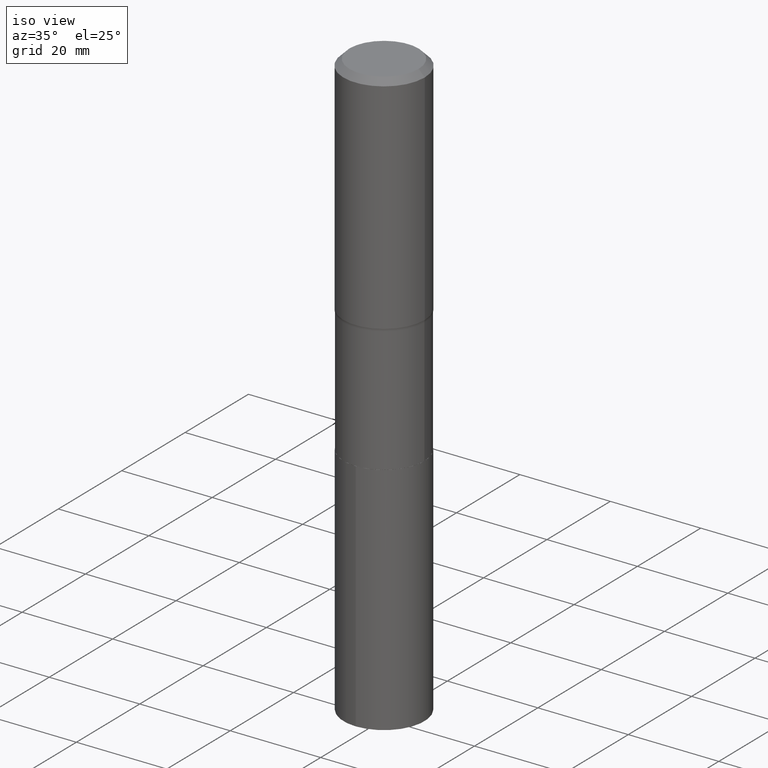
[diagram: clean part render]
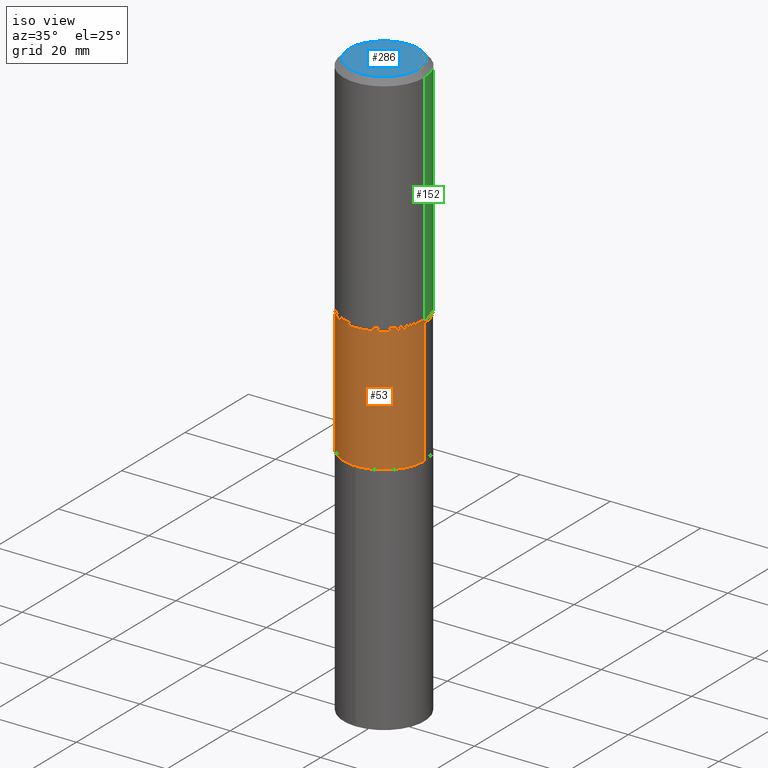
[diagram: same view with three faces highlighted in distinct colors, each labeled with its STEP entity id]
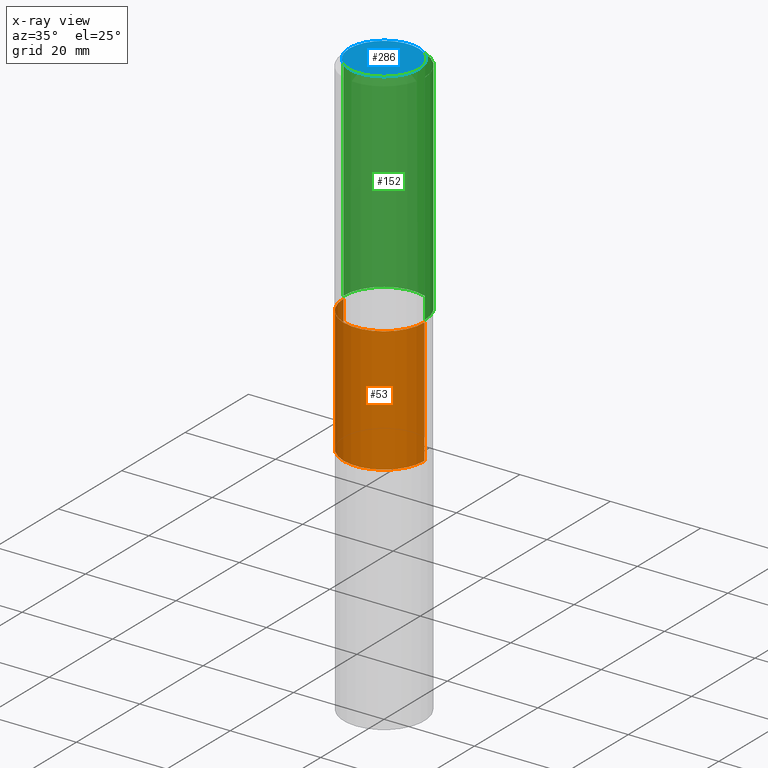
[diagram: x-ray of the same camera — body ghosted, the three highlighted faces saturated]
A machine part, iso view with three faces highlighted in distinct colors.
The next image is the same camera in x-ray (body ghosted, the three faces saturated) — at least one of them is partly hidden behind the body in this view.
Their STEP definitions:

[orange] entity #53 — the highlighted cylindrical surface (partial cylindrical patch) has radius 8.9294 mm, axis along (-0, 0, 1).
#16 = ORIENTED_EDGE ( 'NONE', *, *, #144, .F. ) ;
#19 = ORIENTED_EDGE ( 'NONE', *, *, #377, .T. ) ;
#41 = DIRECTION ( 'NONE',  ( 1.000000000000000000, -6.982962677686265922E-15, 4.876176775795935793E-29 ) ) ;
#44 = DIRECTION ( 'NONE',  ( -2.445468806185136597E-29, 3.491481338843145583E-15, 1.000000000000000000 ) ) ;
#50 = VECTOR ( 'NONE', #233, 39.37007874015748143 ) ;
#53 = ADVANCED_FACE ( 'NONE', ( #75 ), #408, .T. ) ;
#54 = DIRECTION ( 'NONE',  ( -2.445468806185136877E-29, 3.491481338843145188E-15, 1.000000000000000000 ) ) ;
#58 = CARTESIAN_POINT ( 'NONE',  ( -0.3515499999999999181, 2.497912987564631622E-15, -1.729251630979111735E-29 ) ) ;
#61 = VERTEX_POINT ( 'NONE', #435 ) ;
#67 = EDGE_CURVE ( 'NONE', #61, #96, #287, .T. ) ;
#68 = DIRECTION ( 'NONE',  ( 1.000000000000000000, -6.982962677686265922E-15, 0.000000000000000000 ) ) ;
#74 = ORIENTED_EDGE ( 'NONE', *, *, #136, .T. ) ;
#75 = FACE_OUTER_BOUND ( 'NONE', #464, .T. ) ;
#96 = VERTEX_POINT ( 'NONE', #413 ) ;
#102 = VERTEX_POINT ( 'NONE', #261 ) ;
#113 = VECTOR ( 'NONE', #54, 39.37007874015748143 ) ;
#122 = AXIS2_PLACEMENT_3D ( 'NONE', #269, #238, #68 ) ;
#136 = EDGE_CURVE ( 'NONE', #429, #96, #309, .T. ) ;
#144 = EDGE_CURVE ( 'NONE', #102, #61, #411, .T. ) ;
#162 = CIRCLE ( 'NONE', #122, 0.3515499999999999736 ) ;
#191 = CARTESIAN_POINT ( 'NONE',  ( 4.845940986336468413E-29, -6.918719421051579045E-15, -1.981600000000000472 ) ) ;
#218 = DIRECTION ( 'NONE',  ( -2.445468806185136597E-29, 3.491481338843145583E-15, 1.000000000000000000 ) ) ;
#233 = DIRECTION ( 'NONE',  ( -2.445468806185136877E-29, 3.491481338843145188E-15, 1.000000000000000000 ) ) ;
#238 = DIRECTION ( 'NONE',  ( -2.445468806185136597E-29, 3.491481338843145583E-15, 1.000000000000000000 ) ) ;
#261 = CARTESIAN_POINT ( 'NONE',  ( -0.3515499999999999736, -6.321918022487037385E-15, -3.070599999999999774 ) ) ;
#269 = CARTESIAN_POINT ( 'NONE',  ( 7.509056516272079952E-29, -1.072094259905176212E-14, -3.070599999999999774 ) ) ;
#270 = AXIS2_PLACEMENT_3D ( 'NONE', #327, #218, #41 ) ;
#287 = CIRCLE ( 'NONE', #301, 0.3515499999999998071 ) ;
#295 = ORIENTED_EDGE ( 'NONE', *, *, #67, .F. ) ;
#301 = AXIS2_PLACEMENT_3D ( 'NONE', #191, #44, #438 ) ;
#309 = LINE ( 'NONE', #372, #50 ) ;
#327 = CARTESIAN_POINT ( 'NONE',  ( 0.000000000000000000, 0.000000000000000000, 0.000000000000000000 ) ) ;
#351 = CARTESIAN_POINT ( 'NONE',  ( 0.3515499999999999736, -1.317580312839236801E-14, -3.070599999999999774 ) ) ;
#372 = CARTESIAN_POINT ( 'NONE',  ( 0.3515499999999999181, -2.454860529340606276E-15, 1.714219945531060835E-29 ) ) ;
#377 = EDGE_CURVE ( 'NONE', #102, #429, #162, .T. ) ;
#408 = CYLINDRICAL_SURFACE ( 'NONE', #270, 0.3515499999999999181 ) ;
#411 = LINE ( 'NONE', #58, #113 ) ;
#413 = CARTESIAN_POINT ( 'NONE',  ( 0.3515499999999998071, -9.373579950392184927E-15, -1.981600000000000472 ) ) ;
#429 = VERTEX_POINT ( 'NONE', #351 ) ;
#435 = CARTESIAN_POINT ( 'NONE',  ( -0.3515499999999998071, -6.321918022487038963E-15, -1.981600000000000472 ) ) ;
#438 = DIRECTION ( 'NONE',  ( 1.000000000000000000, -6.982962677686265133E-15, 0.000000000000000000 ) ) ;
#464 = EDGE_LOOP ( 'NONE', ( #16, #19, #74, #295 ) ) ;

[blue] entity #286 — the highlighted planar face has unit normal (0, -0, -1).
#3 = EDGE_CURVE ( 'NONE', #352, #155, #342, .T. ) ;
#5 = CARTESIAN_POINT ( 'NONE',  ( -1.002970424325033577E-46, 1.431975951230896212E-32, 4.101342130344485961E-18 ) ) ;
#32 = CIRCLE ( 'NONE', #178, 0.3011975000000000069 ) ;
#34 = DIRECTION ( 'NONE',  ( 2.438088387897960049E-29, -3.491481338843145188E-15, -1.000000000000000000 ) ) ;
#151 = DIRECTION ( 'NONE',  ( -2.445468806185136597E-29, 3.491481338843145583E-15, 1.000000000000000000 ) ) ;
#155 = VERTEX_POINT ( 'NONE', #339 ) ;
#166 = CARTESIAN_POINT ( 'NONE',  ( -1.002970424325033577E-46, 1.431975951230896212E-32, 4.101342130344485961E-18 ) ) ;
#169 = AXIS2_PLACEMENT_3D ( 'NONE', #347, #34, #241 ) ;
#178 = AXIS2_PLACEMENT_3D ( 'NONE', #166, #273, #451 ) ;
#179 = EDGE_CURVE ( 'NONE', #155, #352, #32, .T. ) ;
#180 = AXIS2_PLACEMENT_3D ( 'NONE', #5, #151, #357 ) ;
#224 = ORIENTED_EDGE ( 'NONE', *, *, #179, .T. ) ;
#228 = ORIENTED_EDGE ( 'NONE', *, *, #3, .T. ) ;
#241 = DIRECTION ( 'NONE',  ( -1.000000000000000000, 6.982962677686265922E-15, -4.876176775795935793E-29 ) ) ;
#273 = DIRECTION ( 'NONE',  ( -2.445468806185136597E-29, 3.491481338843145583E-15, 1.000000000000000000 ) ) ;
#286 = ADVANCED_FACE ( 'NONE', ( #392 ), #454, .F. ) ;
#307 = EDGE_LOOP ( 'NONE', ( #228, #224 ) ) ;
#339 = CARTESIAN_POINT ( 'NONE',  ( 0.3011975000000000069, -2.341481636528498111E-15, 4.101342130360026675E-18 ) ) ;
#342 = CIRCLE ( 'NONE', #180, 0.3011975000000000069 ) ;
#347 = CARTESIAN_POINT ( 'NONE',  ( -5.014852121625167883E-47, 7.159879756154481060E-33, 2.050671065172242981E-18 ) ) ;
#352 = VERTEX_POINT ( 'NONE', #407 ) ;
#357 = DIRECTION ( 'NONE',  ( 1.000000000000000000, -6.982962677686266711E-15, 4.876239486148337140E-29 ) ) ;
#392 = FACE_OUTER_BOUND ( 'NONE', #307, .T. ) ;
#407 = CARTESIAN_POINT ( 'NONE',  ( -0.3011975000000000069, 2.196041382043838255E-15, 4.101342130329452923E-18 ) ) ;
#451 = DIRECTION ( 'NONE',  ( 1.000000000000000000, -6.982962677686266711E-15, 4.876239486148337140E-29 ) ) ;
#454 = PLANE ( 'NONE',  #169 ) ;

[green] entity #152 — the highlighted cylindrical surface (partial cylindrical patch) has radius 9.0005 mm, axis along (-0, 0, 1).
#9 = CIRCLE ( 'NONE', #297, 0.3543500000000002759 ) ;
#14 = AXIS2_PLACEMENT_3D ( 'NONE', #138, #29, #143 ) ;
#20 = CARTESIAN_POINT ( 'NONE',  ( -0.3543500000000002759, -4.327659991680637196E-15, -1.960620009532889618 ) ) ;
#29 = DIRECTION ( 'NONE',  ( -2.445468806185136597E-29, 3.491481338843145583E-15, 1.000000000000000000 ) ) ;
#30 = EDGE_CURVE ( 'NONE', #430, #414, #9, .T. ) ;
#38 = DIRECTION ( 'NONE',  ( 1.000000000000000000, -6.982962677686268288E-15, 0.000000000000000000 ) ) ;
#56 = VECTOR ( 'NONE', #97, 39.37007874015748143 ) ;
#81 = EDGE_LOOP ( 'NONE', ( #234, #177, #175, #253 ) ) ;
#97 = DIRECTION ( 'NONE',  ( -2.445468806185136877E-29, 3.491481338843145188E-15, 1.000000000000000000 ) ) ;
#138 = CARTESIAN_POINT ( 'NONE',  ( 1.299827807207564898E-30, -1.855809618628617475E-16, -0.05315250000000042163 ) ) ;
#143 = DIRECTION ( 'NONE',  ( 1.000000000000000000, -6.982962677686266711E-15, 0.000000000000000000 ) ) ;
#152 = ADVANCED_FACE ( 'NONE', ( #375 ), #206, .T. ) ;
#175 = ORIENTED_EDGE ( 'NONE', *, *, #225, .F. ) ;
#177 = ORIENTED_EDGE ( 'NONE', *, *, #258, .T. ) ;
#199 = DIRECTION ( 'NONE',  ( -2.445468806185136597E-29, 3.491481338843145583E-15, 1.000000000000000000 ) ) ;
#206 = CYLINDRICAL_SURFACE ( 'NONE', #313, 0.3543500000000001648 ) ;
#225 = EDGE_CURVE ( 'NONE', #311, #298, #262, .T. ) ;
#234 = ORIENTED_EDGE ( 'NONE', *, *, #30, .T. ) ;
#253 = ORIENTED_EDGE ( 'NONE', *, *, #364, .F. ) ;
#255 = DIRECTION ( 'NONE',  ( -2.445468806185136597E-29, 3.491481338843145583E-15, 1.000000000000000000 ) ) ;
#258 = EDGE_CURVE ( 'NONE', #414, #298, #283, .T. ) ;
#262 = CIRCLE ( 'NONE', #14, 0.3543500000000000538 ) ;
#264 = LINE ( 'NONE', #319, #56 ) ;
#272 = CARTESIAN_POINT ( 'NONE',  ( 0.3543500000000000538, -2.659993786700990959E-15, -0.05315250000000042163 ) ) ;
#274 = DIRECTION ( 'NONE',  ( -2.445468806185136877E-29, 3.491481338843145188E-15, 1.000000000000000000 ) ) ;
#283 = LINE ( 'NONE', #390, #402 ) ;
#297 = AXIS2_PLACEMENT_3D ( 'NONE', #366, #255, #38 ) ;
#298 = VERTEX_POINT ( 'NONE', #388 ) ;
#311 = VERTEX_POINT ( 'NONE', #272 ) ;
#313 = AXIS2_PLACEMENT_3D ( 'NONE', #378, #199, #455 ) ;
#318 = CARTESIAN_POINT ( 'NONE',  ( 0.3543500000000002759, -9.319881000684684831E-15, -1.960620009532889618 ) ) ;
#319 = CARTESIAN_POINT ( 'NONE',  ( 0.3543500000000001648, -2.474412824838129483E-15, 1.727873240503290590E-29 ) ) ;
#364 = EDGE_CURVE ( 'NONE', #430, #311, #264, .T. ) ;
#366 = CARTESIAN_POINT ( 'NONE',  ( 4.794635074095086779E-29, -6.845468175846554165E-15, -1.960620009532889618 ) ) ;
#375 = FACE_OUTER_BOUND ( 'NONE', #81, .T. ) ;
#378 = CARTESIAN_POINT ( 'NONE',  ( 0.000000000000000000, 0.000000000000000000, 0.000000000000000000 ) ) ;
#388 = CARTESIAN_POINT ( 'NONE',  ( -0.3543500000000000538, -9.977163846887918380E-16, -0.05315250000000042163 ) ) ;
#390 = CARTESIAN_POINT ( 'NONE',  ( -0.3543500000000001648, 2.517808184165916180E-15, -1.743024649231826627E-29 ) ) ;
#402 = VECTOR ( 'NONE', #274, 39.37007874015748143 ) ;
#414 = VERTEX_POINT ( 'NONE', #20 ) ;
#430 = VERTEX_POINT ( 'NONE', #318 ) ;
#455 = DIRECTION ( 'NONE',  ( 1.000000000000000000, -6.982962677686265922E-15, 4.876176775795935793E-29 ) ) ;